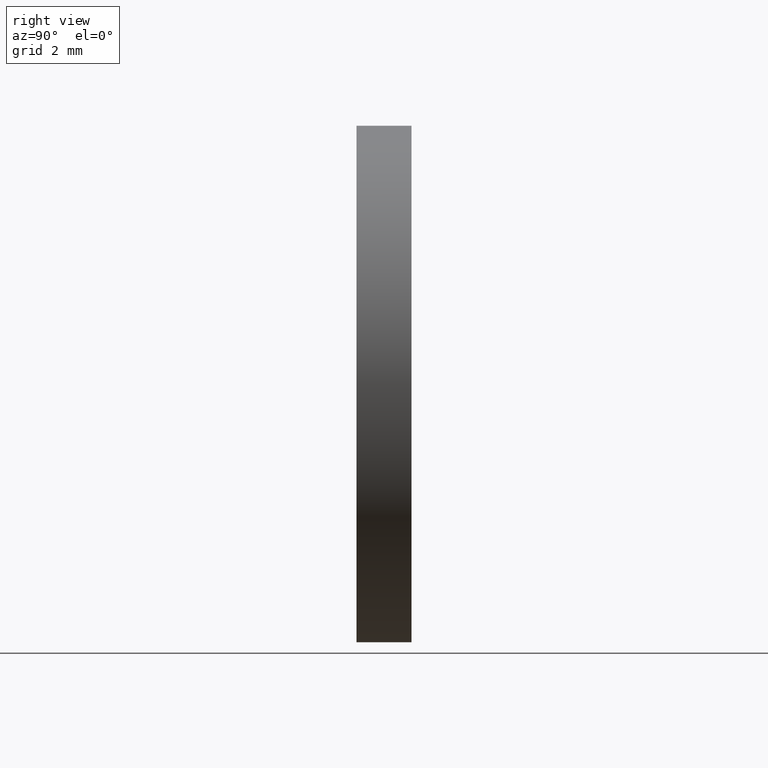
[diagram: clean part render]
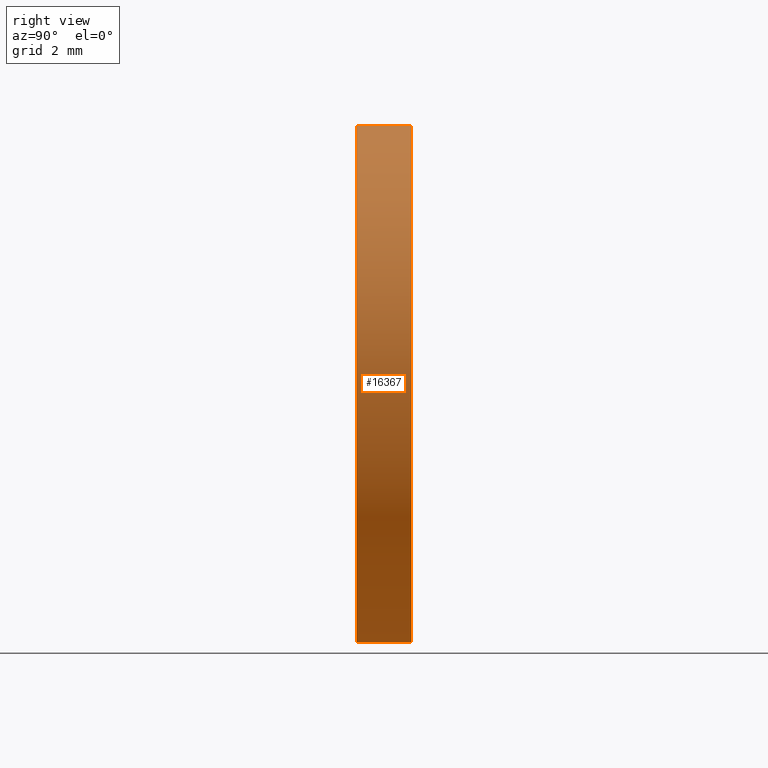
[diagram: same view with one face highlighted and labeled with its STEP entity id]
A machine part, right view. The second image highlights one B-rep face of the part: STEP entity #16367.
In plain terms, the highlighted cylindrical surface (partial cylindrical patch) has radius 7.5 mm, axis along (-0, -1, -0).
Its self-contained STEP definition (entity closure, byte-faithful):
#81 = AXIS2_PLACEMENT_3D ( 'NONE', #13041, #5134, #9129 ) ;
#955 = CIRCLE ( 'NONE', #81, 7.500000000000000000 ) ;
#1096 = FACE_OUTER_BOUND ( 'NONE', #12697, .T. ) ;
#1525 = CARTESIAN_POINT ( 'NONE',  ( 0.000000000000000000, -0.8000000000000000444, 0.000000000000000000 ) ) ;
#1537 = VECTOR ( 'NONE', #12238, 1000.000000000000000 ) ;
#1606 = VECTOR ( 'NONE', #6861, 1000.000000000000000 ) ;
#1838 = CARTESIAN_POINT ( 'NONE',  ( 0.000000000000000000, 0.8000000000000000444, -7.500000000000000000 ) ) ;
#1889 = VERTEX_POINT ( 'NONE', #3774 ) ;
#2243 = CARTESIAN_POINT ( 'NONE',  ( 9.184850993605147944E-16, -0.8000000000000000444, 7.500000000000000000 ) ) ;
#2844 = EDGE_CURVE ( 'NONE', #3455, #8636, #13371, .T. ) ;
#3362 = EDGE_CURVE ( 'NONE', #10160, #3455, #5501, .T. ) ;
#3455 = VERTEX_POINT ( 'NONE', #2243 ) ;
#3774 = CARTESIAN_POINT ( 'NONE',  ( 0.000000000000000000, 0.8000000000000000444, -7.500000000000000000 ) ) ;
#3905 = AXIS2_PLACEMENT_3D ( 'NONE', #9654, #16007, #6820 ) ;
#5134 = DIRECTION ( 'NONE',  ( 0.000000000000000000, 1.000000000000000000, 0.000000000000000000 ) ) ;
#5264 = CARTESIAN_POINT ( 'NONE',  ( 9.184850993605147944E-16, 0.8000000000000000444, 7.500000000000000000 ) ) ;
#5501 = LINE ( 'NONE', #15945, #1606 ) ;
#6387 = CYLINDRICAL_SURFACE ( 'NONE', #3905, 7.500000000000000000 ) ;
#6763 = ORIENTED_EDGE ( 'NONE', *, *, #13957, .F. ) ;
#6820 = DIRECTION ( 'NONE',  ( 0.000000000000000000, 0.000000000000000000, -1.000000000000000000 ) ) ;
#6861 = DIRECTION ( 'NONE',  ( -0.000000000000000000, -1.000000000000000000, -0.000000000000000000 ) ) ;
#8060 = LINE ( 'NONE', #1838, #1537 ) ;
#8636 = VERTEX_POINT ( 'NONE', #16398 ) ;
#8746 = ORIENTED_EDGE ( 'NONE', *, *, #2844, .T. ) ;
#9129 = DIRECTION ( 'NONE',  ( 0.000000000000000000, 0.000000000000000000, 1.000000000000000000 ) ) ;
#9654 = CARTESIAN_POINT ( 'NONE',  ( 0.000000000000000000, 0.8000000000000000444, 0.000000000000000000 ) ) ;
#10160 = VERTEX_POINT ( 'NONE', #5264 ) ;
#10627 = DIRECTION ( 'NONE',  ( 0.000000000000000000, 1.000000000000000000, 0.000000000000000000 ) ) ;
#10798 = AXIS2_PLACEMENT_3D ( 'NONE', #1525, #10627, #13205 ) ;
#12031 = ORIENTED_EDGE ( 'NONE', *, *, #13239, .F. ) ;
#12238 = DIRECTION ( 'NONE',  ( -0.000000000000000000, -1.000000000000000000, -0.000000000000000000 ) ) ;
#12697 = EDGE_LOOP ( 'NONE', ( #6763, #14251, #8746, #12031 ) ) ;
#13041 = CARTESIAN_POINT ( 'NONE',  ( 0.000000000000000000, 0.8000000000000000444, 0.000000000000000000 ) ) ;
#13205 = DIRECTION ( 'NONE',  ( 0.000000000000000000, 0.000000000000000000, 1.000000000000000000 ) ) ;
#13239 = EDGE_CURVE ( 'NONE', #1889, #8636, #8060, .T. ) ;
#13371 = CIRCLE ( 'NONE', #10798, 7.500000000000000000 ) ;
#13957 = EDGE_CURVE ( 'NONE', #10160, #1889, #955, .T. ) ;
#14251 = ORIENTED_EDGE ( 'NONE', *, *, #3362, .T. ) ;
#15945 = CARTESIAN_POINT ( 'NONE',  ( 9.184850993605147944E-16, 0.8000000000000000444, 7.500000000000000000 ) ) ;
#16007 = DIRECTION ( 'NONE',  ( -0.000000000000000000, -1.000000000000000000, -0.000000000000000000 ) ) ;
#16367 = ADVANCED_FACE ( 'NONE', ( #1096 ), #6387, .T. ) ;
#16398 = CARTESIAN_POINT ( 'NONE',  ( 0.000000000000000000, -0.8000000000000000444, -7.500000000000000000 ) ) ;